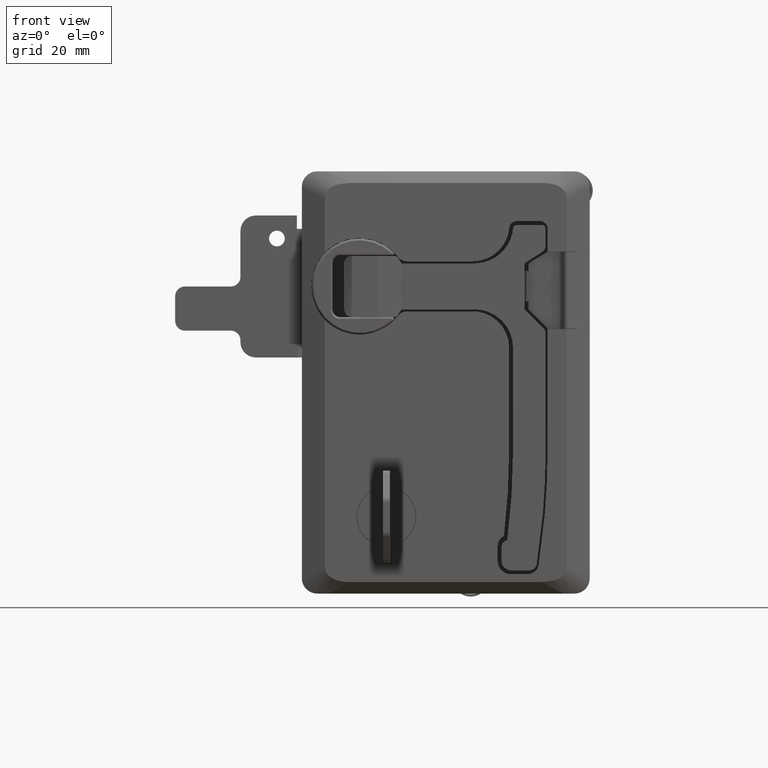
[diagram: clean part render]
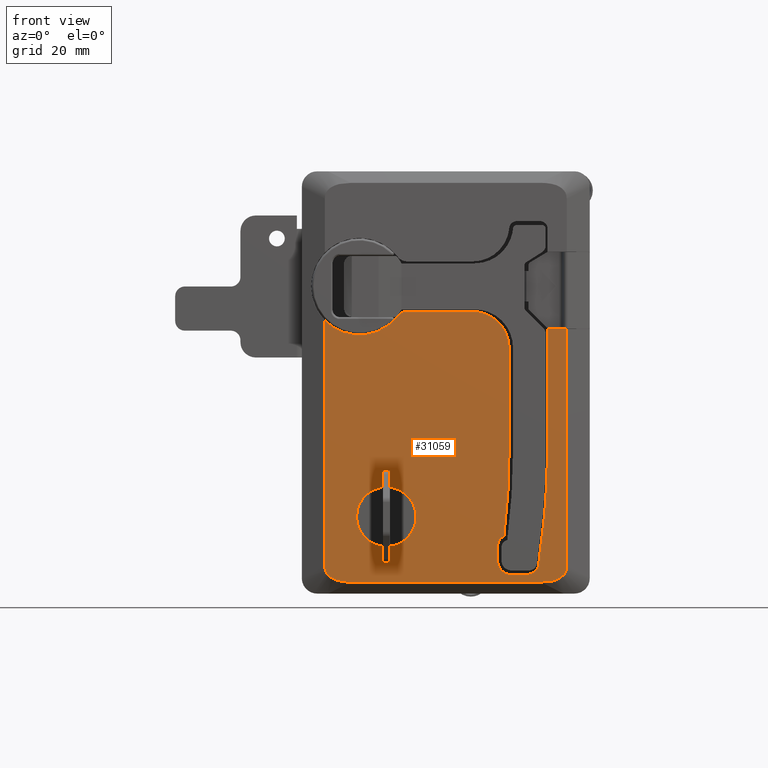
[diagram: same view with one face highlighted and labeled with its STEP entity id]
A machine part, front view. The second image highlights one B-rep face of the part: STEP entity #31059.
In plain terms, the highlighted face is a freeform B-spline surface patch.
Its self-contained STEP definition (entity closure, byte-faithful):
#23403=CARTESIAN_POINT('',(12.917002477622690,-26.800000000000001,-54.995498609322269));
#23404=VERTEX_POINT('',#23403);
#23410=CARTESIAN_POINT('',(6.999445687218810,-26.800000000000001,-52.250000000000000));
#23411=VERTEX_POINT('',#23410);
#23412=CARTESIAN_POINT('',(12.917002477622690,-26.800000000000001,-54.995498609322269));
#23413=CARTESIAN_POINT('',(12.532114415226401,-26.799999999999990,-54.540209855850797));
#23414=CARTESIAN_POINT('',(11.733789703964691,-26.800000000000061,-53.791630616574018));
#23415=CARTESIAN_POINT('',(10.436877065988160,-26.799999999999930,-53.008969548016587));
#23416=CARTESIAN_POINT('',(8.893004496257094,-26.800000000000139,-52.416277700723462));
#23417=CARTESIAN_POINT('',(7.735934408549646,-26.799999999999748,-52.249682751461343));
#23418=CARTESIAN_POINT('',(6.999445687218810,-26.800000000000001,-52.250000000000000));
#23419=B_SPLINE_CURVE_WITH_KNOTS('',3,(#23412,#23413,#23414,#23415,#23416,#23417,#23418),.UNSPECIFIED.,.F.,.U.,(4,1,1,1,4),(0.000000037053834,1.788524279007095,3.261441542057810,4.523910260459799,6.733264531696319),.UNSPECIFIED.);
#23420=EDGE_CURVE('',#23404,#23411,#23419,.T.);
#23422=CARTESIAN_POINT('',(-0.750554312780496,-26.800000000000001,-60.000003280881252));
#23423=VERTEX_POINT('',#23422);
#23424=CARTESIAN_POINT('',(6.999445687218810,-26.800000000000001,-52.250000000000000));
#23425=CARTESIAN_POINT('',(6.460507470667566,-26.799999999999990,-52.249916621606737));
#23426=CARTESIAN_POINT('',(5.446070464292315,-26.800000000000100,-52.356249787751793));
#23427=CARTESIAN_POINT('',(4.077676528606228,-26.799999999999830,-52.780523018748497));
#23428=CARTESIAN_POINT('',(2.916576663756689,-26.800000000000260,-53.373960279938522));
#23429=CARTESIAN_POINT('',(1.890168515988068,-26.799999999999869,-54.125480682576310));
#23430=CARTESIAN_POINT('',(0.845644012024147,-26.800000000000029,-55.195809264353372));
#23431=CARTESIAN_POINT('',(0.076656841621451,-26.800000000000150,-56.410119798936812));
#23432=CARTESIAN_POINT('',(-0.573830101091519,-26.799999999999951,-58.066405454718463));
#23433=CARTESIAN_POINT('',(-0.751007875859733,-26.800000000000061,-59.207373255204182));
#23434=CARTESIAN_POINT('',(-0.750554312780496,-26.800000000000001,-60.000003280881252));
#23435=B_SPLINE_CURVE_WITH_KNOTS('',3,(#23424,#23425,#23426,#23427,#23428,#23429,#23430,#23431,#23432,#23433,#23434),.UNSPECIFIED.,.F.,.U.,(4,1,1,1,1,1,1,1,4),(0.000000124974735,1.616801057400027,3.043437746209914,4.279840933520175,5.516272973283497,6.847730116509911,8.749875879723723,9.796075963024434,12.173749766458270),.UNSPECIFIED.);
#23436=EDGE_CURVE('',#23411,#23423,#23435,.T.);
#23438=CARTESIAN_POINT('',(6.999445687218810,-26.800000000000001,-67.750000000000000));
#23439=VERTEX_POINT('',#23438);
#23440=CARTESIAN_POINT('',(-0.750554312780496,-26.800000000000001,-60.000003280881252));
#23441=CARTESIAN_POINT('',(-0.750636935798445,-26.799999999999962,-60.538940554959332));
#23442=CARTESIAN_POINT('',(-0.644308165380938,-26.800000000000072,-61.553379890082340));
#23443=CARTESIAN_POINT('',(-0.257737265174883,-26.799999999999969,-62.800129886844083));
#23444=CARTESIAN_POINT('',(0.251083215307085,-26.800000000000040,-63.859024589034902));
#23445=CARTESIAN_POINT('',(0.828786143331361,-26.799999999999979,-64.735200941174440));
#23446=CARTESIAN_POINT('',(1.718865285307878,-26.800000000000029,-65.729565601562072));
#23447=CARTESIAN_POINT('',(2.875515861532231,-26.799999999999979,-66.632264948754809));
#23448=CARTESIAN_POINT('',(4.254622915627603,-26.800000000000050,-67.294858679675968));
#23449=CARTESIAN_POINT('',(5.636274182742888,-26.799999999999990,-67.668039131237705));
#23450=CARTESIAN_POINT('',(6.523912866304109,-26.800000000000040,-67.750042389560306));
#23451=CARTESIAN_POINT('',(6.999445687218810,-26.800000000000001,-67.750000000000000));
#23452=B_SPLINE_CURVE_WITH_KNOTS('',3,(#23440,#23441,#23442,#23443,#23444,#23445,#23446,#23447,#23448,#23449,#23450,#23451),.UNSPECIFIED.,.F.,.U.,(4,1,1,1,1,1,1,1,1,4),(0.000000126115161,1.616800567181636,3.043436822629403,3.899403659164078,5.135835587709249,6.181943160759115,7.893908701185636,9.510745939645327,10.747148303678330,12.173746068117270),.UNSPECIFIED.);
#23453=EDGE_CURVE('',#23423,#23439,#23452,.T.);
#23455=CARTESIAN_POINT('',(12.334193152108330,-26.800000000000001,-65.621650717526194));
#23456=VERTEX_POINT('',#23455);
#23457=CARTESIAN_POINT('',(6.999445687218810,-26.800000000000001,-67.750000000000000));
#23458=CARTESIAN_POINT('',(7.704323074026401,-26.800000000000001,-67.750246159318706));
#23459=CARTESIAN_POINT('',(8.868692799548493,-26.800000000000079,-67.589964808406151));
#23460=CARTESIAN_POINT('',(10.710384131070199,-26.799999999999979,-66.893025824176860));
#23461=CARTESIAN_POINT('',(11.756432138318299,-26.800000000000029,-66.170418855819577));
#23462=CARTESIAN_POINT('',(12.334193152108330,-26.800000000000001,-65.621650717526194));
#23463=B_SPLINE_CURVE_WITH_KNOTS('',3,(#23457,#23458,#23459,#23460,#23461,#23462),.UNSPECIFIED.,.F.,.U.,(4,1,1,4),(0.000000030787061,2.114564705512668,3.493596910767914,5.883975521403576),.UNSPECIFIED.);
#23464=EDGE_CURVE('',#23439,#23456,#23463,.T.);
#23552=CARTESIAN_POINT('',(14.749445687218110,-26.800000000000001,-59.999996719118769));
#23553=VERTEX_POINT('',#23552);
#23554=CARTESIAN_POINT('',(12.334193152108330,-26.800000000000001,-65.621650717526194));
#23555=CARTESIAN_POINT('',(12.666887642896310,-26.800000000000040,-65.305975448918218));
#23556=CARTESIAN_POINT('',(13.341322541732270,-26.799999999999962,-64.541365031961419));
#23557=CARTESIAN_POINT('',(14.086112426011599,-26.799999999999990,-63.259275217623397));
#23558=CARTESIAN_POINT('',(14.618490827490669,-26.800000000000090,-61.703402337918739));
#23559=CARTESIAN_POINT('',(14.749582192273939,-26.800000000000061,-60.622429611408911));
#23560=CARTESIAN_POINT('',(14.749445687218110,-26.800000000000001,-59.999996719118769));
#23561=B_SPLINE_CURVE_WITH_KNOTS('',3,(#23554,#23555,#23556,#23557,#23558,#23559,#23560),.UNSPECIFIED.,.F.,.U.,(4,1,1,1,4),(0.000000031531671,1.375886207762146,3.046625213410653,4.422495833583695,6.289775287997480),.UNSPECIFIED.);
#23562=EDGE_CURVE('',#23456,#23553,#23561,.T.);
#23564=CARTESIAN_POINT('',(14.749445687218110,-26.800000000000001,-59.999996719118769));
#23565=CARTESIAN_POINT('',(14.749514732998890,-26.799999999999940,-59.489949146316491));
#23566=CARTESIAN_POINT('',(14.662401153221280,-26.800000000000040,-58.611561303392982));
#23567=CARTESIAN_POINT('',(14.315444969942259,-26.799999999999940,-57.351703272532028));
#23568=CARTESIAN_POINT('',(13.779419194574301,-26.800000000000050,-56.158733379070377));
#23569=CARTESIAN_POINT('',(13.246413529791990,-26.799999999999908,-55.384905934999843));
#23570=CARTESIAN_POINT('',(12.917002477622690,-26.800000000000001,-54.995498609322269));
#23571=B_SPLINE_CURVE_WITH_KNOTS('',3,(#23564,#23565,#23566,#23567,#23568,#23569,#23570),.UNSPECIFIED.,.F.,.U.,(4,1,1,1,4),(0.000000027390570,1.530137516817378,2.635254226042595,3.910345834150301,5.440483323616188),.UNSPECIFIED.);
#23572=EDGE_CURVE('',#23553,#23404,#23571,.T.);
#24909=CARTESIAN_POINT('',(53.999445687218802,-26.800000000000001,-11.100000000000000));
#24910=VERTEX_POINT('',#24909);
#24932=CARTESIAN_POINT('',(48.999445687218902,-26.800000000000001,-11.100000000000000));
#24933=VERTEX_POINT('',#24932);
#24939=CARTESIAN_POINT('',(53.999445687218802,-26.800000000000001,-11.100000000000000));
#24940=CARTESIAN_POINT('',(48.999445687218902,-26.800000000000001,-11.100000000000000));
#24941=QUASI_UNIFORM_CURVE('',1,(#24939,#24940),.UNSPECIFIED.,.F.,.U.);
#24942=EDGE_CURVE('',#24910,#24933,#24941,.T.);
#26428=CARTESIAN_POINT('',(12.373445687218901,-26.800000000000001,-6.500000000000000));
#26429=VERTEX_POINT('',#26428);
#26430=CARTESIAN_POINT('',(9.993798530810130,-26.800000000000001,-7.673023148688779));
#26431=VERTEX_POINT('',#26430);
#26432=CARTESIAN_POINT('',(12.373445687218901,-26.800000000000001,-6.500000000000000));
#26433=CARTESIAN_POINT('',(12.001231900942001,-26.800000000000001,-6.499615028096589));
#26434=CARTESIAN_POINT('',(11.457609147071301,-26.800000000000079,-6.602523971676430));
#26435=CARTESIAN_POINT('',(10.632871652628131,-26.799999999999962,-7.009070225510589));
#26436=CARTESIAN_POINT('',(10.220201810133039,-26.800000000000011,-7.377578815216969));
#26437=CARTESIAN_POINT('',(9.993798530810130,-26.800000000000001,-7.673023148688779));
#26438=B_SPLINE_CURVE_WITH_KNOTS('',3,(#26432,#26433,#26434,#26435,#26436,#26437),.UNSPECIFIED.,.F.,.U.,(4,1,1,4),(0.000000065415580,1.116456259205408,1.631713826185116,2.748170019974940),.UNSPECIFIED.);
#26439=EDGE_CURVE('',#26429,#26431,#26438,.T.);
#26460=CARTESIAN_POINT('',(29.499445687218898,-26.800000000000001,-6.500000000000090));
#26461=VERTEX_POINT('',#26460);
#26462=CARTESIAN_POINT('',(29.499445687218898,-26.800000000000001,-6.500000000000090));
#26463=CARTESIAN_POINT('',(12.373445687218901,-26.800000000000001,-6.500000000000000));
#26464=QUASI_UNIFORM_CURVE('',1,(#26462,#26463),.UNSPECIFIED.,.F.,.U.);
#26465=EDGE_CURVE('',#26461,#26429,#26464,.T.);
#26493=CARTESIAN_POINT('',(38.999445687218902,-26.800000000000001,-16.0));
#26494=VERTEX_POINT('',#26493);
#26495=CARTESIAN_POINT('',(38.999445687218902,-26.800000000000001,-16.0));
#26496=CARTESIAN_POINT('',(38.999551267196672,-26.800000000000040,-15.300510673955150));
#26497=CARTESIAN_POINT('',(38.835702061403083,-26.800000000000018,-13.823800545663230));
#26498=CARTESIAN_POINT('',(38.176222437385910,-26.799999999999908,-11.980544581607401));
#26499=CARTESIAN_POINT('',(37.234522203364747,-26.800000000000139,-10.409738944920081));
#26500=CARTESIAN_POINT('',(36.095719911397083,-26.800000000000011,-9.072880442628232));
#26501=CARTESIAN_POINT('',(34.708695888804918,-26.799999999999830,-7.990444732840258));
#26502=CARTESIAN_POINT('',(33.048403621938697,-26.800000000000381,-7.129056831771644));
#26503=CARTESIAN_POINT('',(31.364774057310559,-26.799999999999820,-6.618311990099283));
#26504=CARTESIAN_POINT('',(30.082347499496009,-26.800000000000040,-6.499958600231725));
#26505=CARTESIAN_POINT('',(29.499445687218898,-26.800000000000001,-6.500000000000090));
#26506=B_SPLINE_CURVE_WITH_KNOTS('',3,(#26495,#26496,#26497,#26498,#26499,#26500,#26501,#26502,#26503,#26504,#26505),.UNSPECIFIED.,.F.,.U.,(4,1,1,1,1,1,1,1,4),(0.000000096927323,2.098477745853547,4.430171594118560,5.829193939047762,7.577884668677188,9.676389465625100,11.075409964553820,13.173934418335479,14.922658737316070),.UNSPECIFIED.);
#26507=EDGE_CURVE('',#26494,#26461,#26506,.T.);
#26522=CARTESIAN_POINT('',(38.999445687218902,-26.800000000000001,-42.488999999999997));
#26523=VERTEX_POINT('',#26522);
#26524=CARTESIAN_POINT('',(38.999445687218902,-26.800000000000001,-42.488999999999997));
#26525=CARTESIAN_POINT('',(38.999445687218902,-26.800000000000001,-16.0));
#26526=QUASI_UNIFORM_CURVE('',1,(#26524,#26525),.UNSPECIFIED.,.F.,.U.);
#26527=EDGE_CURVE('',#26523,#26494,#26526,.T.);
#26553=CARTESIAN_POINT('',(37.624697815465453,-26.800000000000001,-64.999999869627700));
#26554=VERTEX_POINT('',#26553);
#26555=CARTESIAN_POINT('',(37.624697815465453,-26.800000000000001,-64.999999869627700));
#26556=CARTESIAN_POINT('',(38.999445687218895,-26.800000000000004,-53.786477894963078));
#26557=CARTESIAN_POINT('',(38.999445687218888,-26.800000000000001,-42.488999999999997));
#26565=(BOUNDED_CURVE()B_SPLINE_CURVE(2,(#26555,#26556,#26557),.UNSPECIFIED.,.F.,.U.)CURVE()GEOMETRIC_REPRESENTATION_ITEM()QUASI_UNIFORM_CURVE()RATIONAL_B_SPLINE_CURVE((1.0,0.998140424446938,1.0))REPRESENTATION_ITEM(''));
#26566=EDGE_CURVE('',#26554,#26523,#26565,.T.);
#26592=CARTESIAN_POINT('',(35.999445687218902,-26.800000000000001,-67.666471000000101));
#26593=VERTEX_POINT('',#26592);
#26594=CARTESIAN_POINT('',(37.624697815465453,-26.800000000000001,-64.999999869627700));
#26595=CARTESIAN_POINT('',(37.381388568506999,-26.800000000000011,-65.125349966170205));
#26596=CARTESIAN_POINT('',(36.943610414021528,-26.799999999999990,-65.433344535221110));
#26597=CARTESIAN_POINT('',(36.492005010628738,-26.800000000000018,-65.977458902376924));
#26598=CARTESIAN_POINT('',(36.112126432433691,-26.799999999999990,-66.708833263822015));
#26599=CARTESIAN_POINT('',(35.999026638585057,-26.800000000000029,-67.272949805322128));
#26600=CARTESIAN_POINT('',(35.999445687218902,-26.800000000000001,-67.666471000000101));
#26601=B_SPLINE_CURVE_WITH_KNOTS('',3,(#26594,#26595,#26596,#26597,#26598,#26599,#26600),.UNSPECIFIED.,.F.,.U.,(4,1,1,1,4),(0.000000096451828,0.821089131439526,1.590888639422611,2.104035906874152,3.284355507693295),.UNSPECIFIED.);
#26602=EDGE_CURVE('',#26554,#26593,#26601,.T.);
#26619=CARTESIAN_POINT('',(35.999445687218902,-26.800000000000001,-71.500000000000000));
#26620=VERTEX_POINT('',#26619);
#26621=CARTESIAN_POINT('',(35.999445687218902,-26.800000000000001,-71.500000000000000));
#26622=CARTESIAN_POINT('',(35.999445687218902,-26.800000000000001,-67.666471000000101));
#26623=QUASI_UNIFORM_CURVE('',1,(#26621,#26622),.UNSPECIFIED.,.F.,.U.);
#26624=EDGE_CURVE('',#26620,#26593,#26623,.T.);
#26650=CARTESIAN_POINT('',(39.499445687218902,-26.800000000000001,-75.0));
#26651=VERTEX_POINT('',#26650);
#26652=CARTESIAN_POINT('',(35.999445687218902,-26.800000000000001,-71.500000000000000));
#26653=CARTESIAN_POINT('',(35.999398698682320,-26.800000000000072,-71.757713297502406));
#26654=CARTESIAN_POINT('',(36.053459094843660,-26.799999999999951,-72.244472606632343));
#26655=CARTESIAN_POINT('',(36.279080495626737,-26.799999999999969,-72.927492824137332));
#26656=CARTESIAN_POINT('',(36.647779223288737,-26.800000000000018,-73.578423359174963));
#26657=CARTESIAN_POINT('',(37.151530731663250,-26.800000000000040,-74.134201701671756));
#26658=CARTESIAN_POINT('',(37.763174044152443,-26.799999999999919,-74.564930782411807));
#26659=CARTESIAN_POINT('',(38.525997565782653,-26.800000000000200,-74.903125553946055));
#26660=CARTESIAN_POINT('',(39.127169485164544,-26.799999999999802,-75.000203278132616));
#26661=CARTESIAN_POINT('',(39.499445687218902,-26.800000000000001,-75.0));
#26662=B_SPLINE_CURVE_WITH_KNOTS('',3,(#26652,#26653,#26654,#26655,#26656,#26657,#26658,#26659,#26660,#26661),.UNSPECIFIED.,.F.,.U.,(4,1,1,1,1,1,1,4),(0.000000068308714,0.773145446436975,1.460387224079568,2.147637935001587,3.006668813314462,3.693914798205349,4.381160521471431,5.497925105170847),.UNSPECIFIED.);
#26663=EDGE_CURVE('',#26620,#26651,#26662,.T.);
#26680=CARTESIAN_POINT('',(43.717864651518553,-26.800000000000001,-75.0));
#26681=VERTEX_POINT('',#26680);
#26682=CARTESIAN_POINT('',(43.717864651518553,-26.800000000000001,-75.0));
#26683=CARTESIAN_POINT('',(39.499445687218902,-26.800000000000001,-75.0));
#26684=QUASI_UNIFORM_CURVE('',1,(#26682,#26683),.UNSPECIFIED.,.F.,.U.);
#26685=EDGE_CURVE('',#26681,#26651,#26684,.T.);
#26711=CARTESIAN_POINT('',(46.682214036977200,-26.800000000000001,-72.461121156455391));
#26712=VERTEX_POINT('',#26711);
#26713=CARTESIAN_POINT('',(43.717864651518553,-26.800000000000001,-75.0));
#26714=CARTESIAN_POINT('',(44.094141691032618,-26.800000000000001,-75.000308910440154));
#26715=CARTESIAN_POINT('',(44.780069827922809,-26.800000000000040,-74.869229471900255));
#26716=CARTESIAN_POINT('',(45.533199285542047,-26.799999999999979,-74.426663395242542));
#26717=CARTESIAN_POINT('',(46.041285300117032,-26.799999999999940,-73.929225957216346));
#26718=CARTESIAN_POINT('',(46.454437886897857,-26.800000000000178,-73.321515539680064));
#26719=CARTESIAN_POINT('',(46.631381700543791,-26.799999999999869,-72.789221485307564));
#26720=CARTESIAN_POINT('',(46.682214036977200,-26.800000000000001,-72.461121156455391));
#26721=B_SPLINE_CURVE_WITH_KNOTS('',3,(#26713,#26714,#26715,#26716,#26717,#26718,#26719,#26720),.UNSPECIFIED.,.F.,.U.,(4,1,1,1,1,4),(0.000000127962653,1.128781654361569,2.058380560134325,2.589546548660612,3.253541173300686,4.249519229233196),.UNSPECIFIED.);
#26722=EDGE_CURVE('',#26681,#26712,#26721,.T.);
#26748=CARTESIAN_POINT('',(48.999445687218902,-26.800000000000001,-42.488999999999997));
#26749=VERTEX_POINT('',#26748);
#26750=CARTESIAN_POINT('',(46.682214036977257,-26.800000000000001,-72.461121156455448));
#26751=CARTESIAN_POINT('',(48.999445687218923,-26.799999999999997,-57.564636529373317));
#26752=CARTESIAN_POINT('',(48.999445687218923,-26.800000000000001,-42.488999999999997));
#26760=(BOUNDED_CURVE()B_SPLINE_CURVE(2,(#26750,#26751,#26752),.UNSPECIFIED.,.F.,.U.)CURVE()GEOMETRIC_REPRESENTATION_ITEM()QUASI_UNIFORM_CURVE()RATIONAL_B_SPLINE_CURVE((1.0,0.997024689217765,1.0))REPRESENTATION_ITEM(''));
#26761=EDGE_CURVE('',#26712,#26749,#26760,.T.);
#26996=CARTESIAN_POINT('',(-9.000554312781020,-26.800000000000001,-8.817562090151059));
#26997=VERTEX_POINT('',#26996);
#26998=CARTESIAN_POINT('',(-9.000554312781020,-26.800000000000001,-8.817562090151059));
#26999=CARTESIAN_POINT('',(-8.489644649063317,-26.800000000000018,-9.339147278345587));
#27000=CARTESIAN_POINT('',(-7.483775962898527,-26.800000000000001,-10.201340390710961));
#27001=CARTESIAN_POINT('',(-5.517826510352305,-26.800000000000061,-11.411286570944011));
#27002=CARTESIAN_POINT('',(-3.589335568417389,-26.800000000000011,-12.146831814106010));
#27003=CARTESIAN_POINT('',(-1.407426648209093,-26.800000000000050,-12.567580316632361));
#27004=CARTESIAN_POINT('',(0.339058794772483,-26.799999999999930,-12.643518759399409));
#27005=CARTESIAN_POINT('',(2.353038985165165,-26.800000000000061,-12.427222688854661));
#27006=CARTESIAN_POINT('',(4.370837059638735,-26.799999999999940,-11.896090172952739));
#27007=CARTESIAN_POINT('',(6.281133590618856,-26.800000000000100,-10.985842807719431));
#27008=CARTESIAN_POINT('',(8.248217424134678,-26.799999999999908,-9.625220216030737));
#27009=CARTESIAN_POINT('',(9.361282020094309,-26.800000000000232,-8.497382828055040));
#27010=CARTESIAN_POINT('',(9.993798530810130,-26.800000000000001,-7.673023148688779));
#27011=B_SPLINE_CURVE_WITH_KNOTS('',3,(#26998,#26999,#27000,#27001,#27002,#27003,#27004,#27005,#27006,#27007,#27008,#27009,#27010),.UNSPECIFIED.,.F.,.U.,(4,1,1,1,1,1,1,1,1,1,4),(0.000000102483035,2.190360420801245,3.959548566806213,6.908154443723300,8.340352713457387,10.614975460124951,12.131343706450030,14.406002756539060,16.849147540818478,18.449832984141050,21.566906282795749),.UNSPECIFIED.);
#27012=EDGE_CURVE('',#26997,#26431,#27011,.T.);
#29890=CARTESIAN_POINT('',(47.193025326522097,-26.800000000000001,-77.0));
#29891=VERTEX_POINT('',#29890);
#29892=CARTESIAN_POINT('',(53.999445687218902,-26.800000000000001,-72.910781352598903));
#29893=VERTEX_POINT('',#29892);
#29894=CARTESIAN_POINT('',(47.193025326522040,-26.800000000000001,-77.000000000000099));
#29895=CARTESIAN_POINT('',(53.999445687218902,-26.799999999999997,-77.000000000000185));
#29896=CARTESIAN_POINT('',(53.999445687218959,-26.800000000000001,-72.910781352598931));
#29904=(BOUNDED_CURVE()B_SPLINE_CURVE(2,(#29894,#29895,#29896),.UNSPECIFIED.,.F.,.U.)CURVE()GEOMETRIC_REPRESENTATION_ITEM()QUASI_UNIFORM_CURVE()RATIONAL_B_SPLINE_CURVE((1.0,0.924426128745008,1.0))REPRESENTATION_ITEM(''));
#29905=EDGE_CURVE('',#29891,#29893,#29904,.T.);
#30222=CARTESIAN_POINT('',(-2.194133952084430,-26.800000000000001,-77.0));
#30223=VERTEX_POINT('',#30222);
#30229=CARTESIAN_POINT('',(-9.000554312781162,-26.800000000000001,-72.910781352598804));
#30230=VERTEX_POINT('',#30229);
#30231=CARTESIAN_POINT('',(-9.000554312781171,-26.800000000000001,-72.910781352598775));
#30232=CARTESIAN_POINT('',(-9.000554312781159,-26.800000000000001,-76.999999999999986));
#30233=CARTESIAN_POINT('',(-2.194133952084445,-26.800000000000001,-76.999999999999972));
#30241=(BOUNDED_CURVE()B_SPLINE_CURVE(2,(#30231,#30232,#30233),.UNSPECIFIED.,.F.,.U.)CURVE()GEOMETRIC_REPRESENTATION_ITEM()QUASI_UNIFORM_CURVE()RATIONAL_B_SPLINE_CURVE((1.0,0.924426128745007,1.0))REPRESENTATION_ITEM(''));
#30242=EDGE_CURVE('',#30230,#30223,#30241,.T.);
#30303=CARTESIAN_POINT('',(-2.194133952084430,-26.800000000000001,-77.0));
#30304=CARTESIAN_POINT('',(47.193025326522097,-26.800000000000001,-77.0));
#30305=QUASI_UNIFORM_CURVE('',1,(#30303,#30304),.UNSPECIFIED.,.F.,.U.);
#30306=EDGE_CURVE('',#30223,#29891,#30305,.T.);
#30337=CARTESIAN_POINT('',(-9.000554312781020,-26.800000000000001,-8.817562090151059));
#30338=CARTESIAN_POINT('',(-9.000554312781162,-26.800000000000001,-72.910781352598804));
#30339=QUASI_UNIFORM_CURVE('',1,(#30337,#30338),.UNSPECIFIED.,.F.,.U.);
#30340=EDGE_CURVE('',#26997,#30230,#30339,.T.);
#30987=CARTESIAN_POINT('',(53.999445687218902,-26.800000000000001,-72.910781352598903));
#30988=CARTESIAN_POINT('',(53.999445687218802,-26.800000000000001,-11.100000000000000));
#30989=QUASI_UNIFORM_CURVE('',1,(#30987,#30988),.UNSPECIFIED.,.F.,.U.);
#30990=EDGE_CURVE('',#29893,#24910,#30989,.T.);
#31021=CARTESIAN_POINT('',(-12.147404190674941,-26.800000000000001,-80.521474863357312));
#31022=CARTESIAN_POINT('',(57.146297254904347,-26.800000000000001,-80.521474863357312));
#31023=CARTESIAN_POINT('',(-12.147404190674941,-26.800000000000001,-2.978523245685327));
#31024=CARTESIAN_POINT('',(57.146297254904347,-26.800000000000001,-2.978523245685327));
#31025=B_SPLINE_SURFACE_WITH_KNOTS('',1,1,((#31021,#31023),(#31022,#31024)),.UNSPECIFIED.,.F.,.F.,.U.,(2,2),(2,2),(0.0,69.293701445579288),(0.0,77.542951617671989),.UNSPECIFIED.);
#31026=ORIENTED_EDGE('',*,*,#30990,.T.);
#31027=ORIENTED_EDGE('',*,*,#24942,.T.);
#31028=CARTESIAN_POINT('',(48.999445687218902,-26.800000000000001,-11.100000000000000));
#31029=CARTESIAN_POINT('',(48.999445687218902,-26.800000000000001,-42.488999999999997));
#31030=QUASI_UNIFORM_CURVE('',1,(#31028,#31029),.UNSPECIFIED.,.F.,.U.);
#31031=EDGE_CURVE('',#24933,#26749,#31030,.T.);
#31032=ORIENTED_EDGE('',*,*,#31031,.T.);
#31033=ORIENTED_EDGE('',*,*,#26761,.F.);
#31034=ORIENTED_EDGE('',*,*,#26722,.F.);
#31035=ORIENTED_EDGE('',*,*,#26685,.T.);
#31036=ORIENTED_EDGE('',*,*,#26663,.F.);
#31037=ORIENTED_EDGE('',*,*,#26624,.T.);
#31038=ORIENTED_EDGE('',*,*,#26602,.F.);
#31039=ORIENTED_EDGE('',*,*,#26566,.T.);
#31040=ORIENTED_EDGE('',*,*,#26527,.T.);
#31041=ORIENTED_EDGE('',*,*,#26507,.T.);
#31042=ORIENTED_EDGE('',*,*,#26465,.T.);
#31043=ORIENTED_EDGE('',*,*,#26439,.T.);
#31044=ORIENTED_EDGE('',*,*,#27012,.F.);
#31045=ORIENTED_EDGE('',*,*,#30340,.T.);
#31046=ORIENTED_EDGE('',*,*,#30242,.T.);
#31047=ORIENTED_EDGE('',*,*,#30306,.T.);
#31048=ORIENTED_EDGE('',*,*,#29905,.T.);
#31049=EDGE_LOOP('',(#31026,#31027,#31032,#31033,#31034,#31035,#31036,#31037,#31038,#31039,#31040,#31041,#31042,#31043,#31044,#31045,#31046,#31047,#31048));
#31050=FACE_OUTER_BOUND('',#31049,.T.);
#31051=ORIENTED_EDGE('',*,*,#23436,.F.);
#31052=ORIENTED_EDGE('',*,*,#23420,.F.);
#31053=ORIENTED_EDGE('',*,*,#23572,.F.);
#31054=ORIENTED_EDGE('',*,*,#23562,.F.);
#31055=ORIENTED_EDGE('',*,*,#23464,.F.);
#31056=ORIENTED_EDGE('',*,*,#23453,.F.);
#31057=EDGE_LOOP('',(#31051,#31052,#31053,#31054,#31055,#31056));
#31058=FACE_BOUND('',#31057,.T.);
#31059=ADVANCED_FACE('',(#31050,#31058),#31025,.T.);